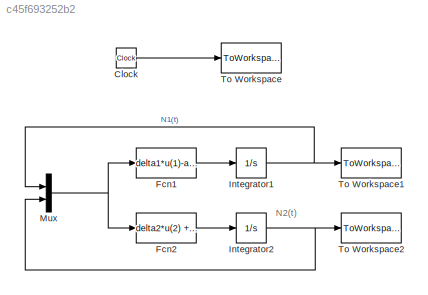
MODEL slx_c45f693252b2
KIND model
CONFIG AbsTol = auto
CONFIG FixedStep = auto
CONFIG MaxStep = auto
CONFIG MinStep = auto
CONFIG RelTol = 1e-3
CONFIG SampleTimeConstraint = Unconstrained
CONFIG Solver = ode45
CONFIG SolverMode = Auto
CONFIG SolverName = ode45
CONFIG StartTime = 0.0
CONFIG StopTime = tsim
BLOCK [Clock] Clock
BLOCK [Fcn] Fcn1
  Expr = delta1*u(1)-alpha1*u(1)*u(2)
BLOCK [Fcn] Fcn2
  Expr = delta2*u(2) +alpha2*u(1)*u(2)
BLOCK [Integrator] Integrator1
  InitialCondition = N10
  Ports = [1, 1]
BLOCK [Integrator] Integrator2
  InitialCondition = N20
  Ports = [1, 1]
BLOCK [Mux] Mux
  DisplayOption = bar
  Inputs = 2
  Ports = [2, 1]
BLOCK [ToWorkspace] To Workspace
  FixptAsFi = on
  MaxDataPoints = inf
  Ports = [1]
  SampleTime = -1
  VariableName = t
BLOCK [ToWorkspace] To Workspace1
  FixptAsFi = on
  MaxDataPoints = inf
  Ports = [1]
  SampleTime = -1
  VariableName = N1
BLOCK [ToWorkspace] To Workspace2
  FixptAsFi = on
  MaxDataPoints = inf
  Ports = [1]
  SampleTime = -1
  VariableName = N2
ANNOTATION (root): N2(t)
LINE Clock:1 -> To Workspace:1
LINE Fcn1:1 -> Integrator1:1
LINE Fcn2:1 -> Integrator2:1
NET Integrator1:1 -> Mux:1, To Workspace1:1
NET Integrator2:1 -> Mux:2, To Workspace2:1
NET Mux:1 -> Fcn1:1, Fcn2:1
note: NET lines group one-source signal fan-out (src -> all destinations, sorted); 1:1 wires keep LINE
